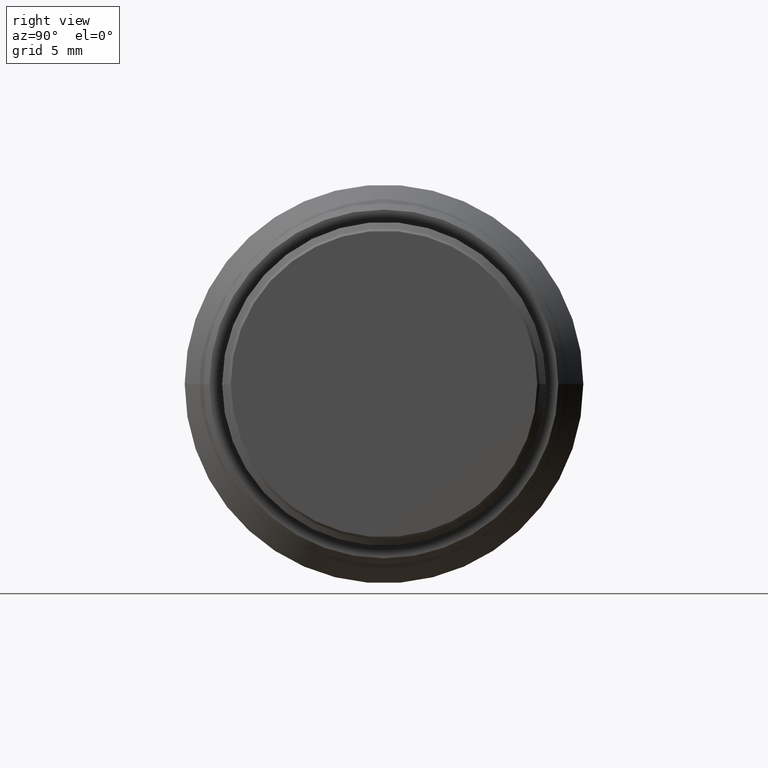
[diagram: clean part render]
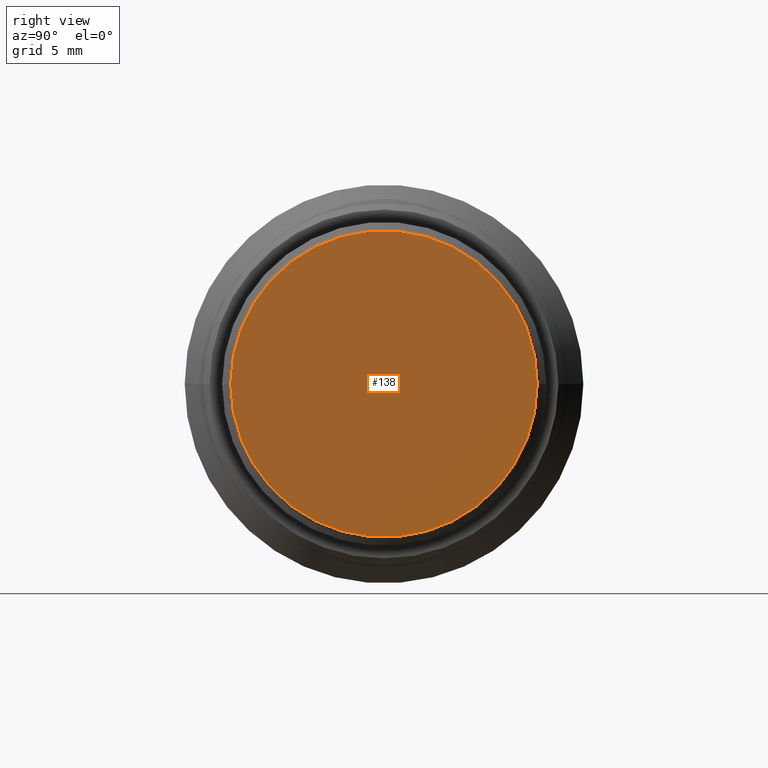
[diagram: same view with one face highlighted and labeled with its STEP entity id]
A machine part, right view. The second image highlights one B-rep face of the part: STEP entity #138.
In plain terms, the highlighted planar face has unit normal (1, 0, 0).
Its self-contained STEP definition (entity closure, byte-faithful):
#41 = CIRCLE ( 'NONE', #1196, 12.29999978895129864 ) ;
#70 = VERTEX_POINT ( 'NONE', #72 ) ;
#72 = CARTESIAN_POINT ( 'NONE',  ( 49.50000000000000000, 12.29999978895129864, 0.000000000000000000 ) ) ;
#138 = ADVANCED_FACE ( 'NONE', ( #272 ), #281, .T. ) ;
#173 = DIRECTION ( 'NONE',  ( 1.000000000000000000, 0.000000000000000000, 0.000000000000000000 ) ) ;
#177 = AXIS2_PLACEMENT_3D ( 'NONE', #857, #173, #1236 ) ;
#262 = CARTESIAN_POINT ( 'NONE',  ( 49.50000000000000000, 0.000000000000000000, 0.000000000000000000 ) ) ;
#272 = FACE_OUTER_BOUND ( 'NONE', #897, .T. ) ;
#281 = PLANE ( 'NONE',  #1052 ) ;
#448 = ORIENTED_EDGE ( 'NONE', *, *, #622, .T. ) ;
#485 = ORIENTED_EDGE ( 'NONE', *, *, #1049, .T. ) ;
#579 = DIRECTION ( 'NONE',  ( 0.000000000000000000, 1.000000000000000000, 0.000000000000000000 ) ) ;
#622 = EDGE_CURVE ( 'NONE', #904, #70, #41, .T. ) ;
#646 = DIRECTION ( 'NONE',  ( 1.000000000000000000, 0.000000000000000000, 0.000000000000000000 ) ) ;
#678 = CARTESIAN_POINT ( 'NONE',  ( 49.50000000000000000, 6.149999894475669748, 0.000000000000000000 ) ) ;
#851 = CIRCLE ( 'NONE', #177, 12.29999978895129864 ) ;
#857 = CARTESIAN_POINT ( 'NONE',  ( 49.50000000000000000, 0.000000000000000000, 0.000000000000000000 ) ) ;
#897 = EDGE_LOOP ( 'NONE', ( #448, #485 ) ) ;
#904 = VERTEX_POINT ( 'NONE', #1007 ) ;
#956 = DIRECTION ( 'NONE',  ( 0.000000000000000000, 1.000000000000000000, 0.000000000000000000 ) ) ;
#1007 = CARTESIAN_POINT ( 'NONE',  ( 49.50000000000000000, -12.29999978895129864, -1.506315537105240006E-15 ) ) ;
#1049 = EDGE_CURVE ( 'NONE', #70, #904, #851, .T. ) ;
#1052 = AXIS2_PLACEMENT_3D ( 'NONE', #678, #1065, #579 ) ;
#1065 = DIRECTION ( 'NONE',  ( 1.000000000000000000, 0.000000000000000000, 0.000000000000000000 ) ) ;
#1196 = AXIS2_PLACEMENT_3D ( 'NONE', #262, #646, #956 ) ;
#1236 = DIRECTION ( 'NONE',  ( 0.000000000000000000, 1.000000000000000000, 0.000000000000000000 ) ) ;